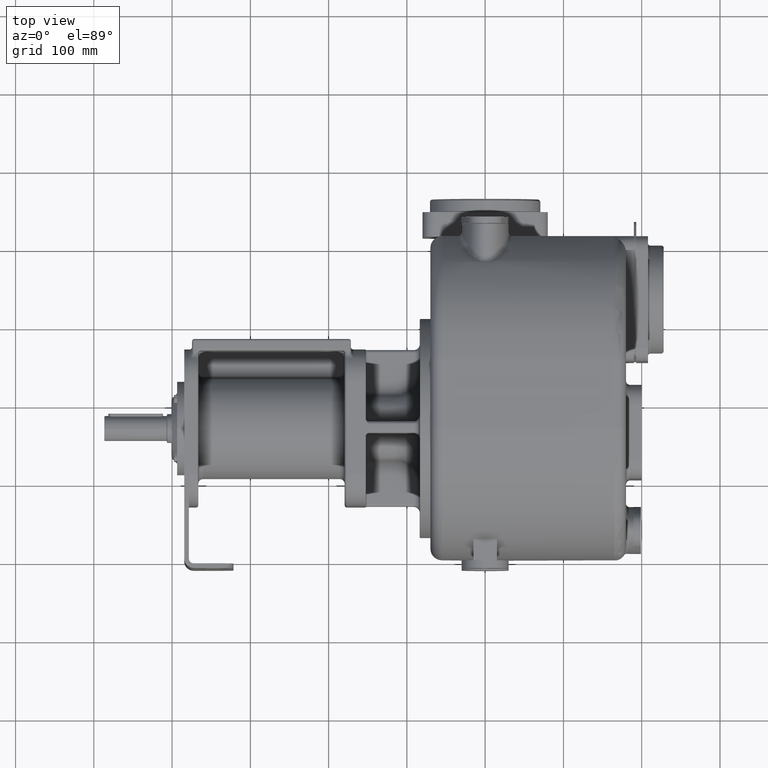
[diagram: clean part render]
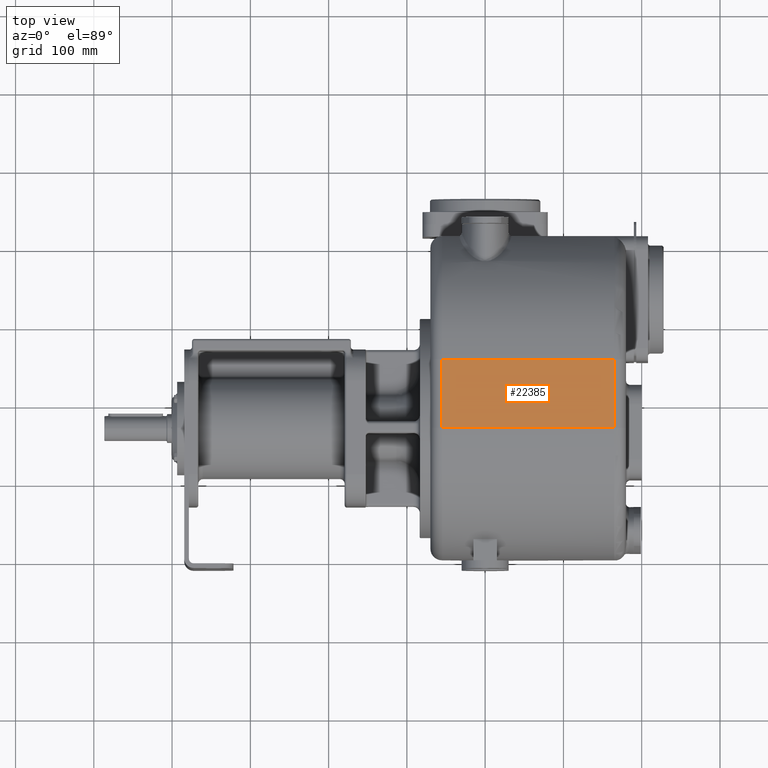
[diagram: same view with one face highlighted and labeled with its STEP entity id]
A machine part, top view. The second image highlights one B-rep face of the part: STEP entity #22385.
In plain terms, the highlighted planar face has unit normal (0, 0, 1).
Its self-contained STEP definition (entity closure, byte-faithful):
#5133=DIRECTION('',(1.E0,2.790495107712E-14,0.E0));
#5134=VECTOR('',#5133,2.2E2);
#5135=CARTESIAN_POINT('',(-5.5E1,2.557779489814E2,1.67E2));
#5136=LINE('',#5135,#5134);
#7261=DIRECTION('',(0.E0,1.E0,0.E0));
#7262=VECTOR('',#7261,8.777794898141E1);
#7263=CARTESIAN_POINT('',(-5.5E1,1.68E2,1.67E2));
#7264=LINE('',#7263,#7262);
#7265=DIRECTION('',(0.E0,-1.E0,0.E0));
#7266=VECTOR('',#7265,8.777794898139E1);
#7267=CARTESIAN_POINT('',(1.65E2,2.557779489814E2,1.67E2));
#7268=LINE('',#7267,#7266);
#7269=DIRECTION('',(1.E0,1.061938415991E-13,0.E0));
#7270=VECTOR('',#7269,2.2E2);
#7271=CARTESIAN_POINT('',(-5.5E1,1.68E2,1.67E2));
#7272=LINE('',#7271,#7270);
#11735=CARTESIAN_POINT('',(1.65E2,1.68E2,1.67E2));
#11736=VERTEX_POINT('',#11735);
#11741=CARTESIAN_POINT('',(1.65E2,2.557779489814E2,1.67E2));
#11742=VERTEX_POINT('',#11741);
#11773=CARTESIAN_POINT('',(-5.5E1,1.68E2,1.67E2));
#11774=VERTEX_POINT('',#11773);
#11777=CARTESIAN_POINT('',(-5.5E1,2.557779489814E2,1.67E2));
#11778=VERTEX_POINT('',#11777);
#22373=CARTESIAN_POINT('',(-7.E1,1.68E2,1.67E2));
#22374=DIRECTION('',(0.E0,0.E0,1.E0));
#22375=DIRECTION('',(0.E0,1.E0,0.E0));
#22376=AXIS2_PLACEMENT_3D('',#22373,#22374,#22375);
#22377=PLANE('',#22376);
#22378=ORIENTED_EDGE('',*,*,#19910,.T.);
#22379=ORIENTED_EDGE('',*,*,#19943,.T.);
#22381=ORIENTED_EDGE('',*,*,#22380,.T.);
#22382=ORIENTED_EDGE('',*,*,#22356,.F.);
#22383=EDGE_LOOP('',(#22378,#22379,#22381,#22382));
#22384=FACE_OUTER_BOUND('',#22383,.F.);
#22385=ADVANCED_FACE('',(#22384),#22377,.T.);
#19910=EDGE_CURVE('',#11774,#11778,#7264,.T.);
#19943=EDGE_CURVE('',#11778,#11742,#5136,.T.);
#22356=EDGE_CURVE('',#11774,#11736,#7272,.T.);
#22380=EDGE_CURVE('',#11742,#11736,#7268,.T.);